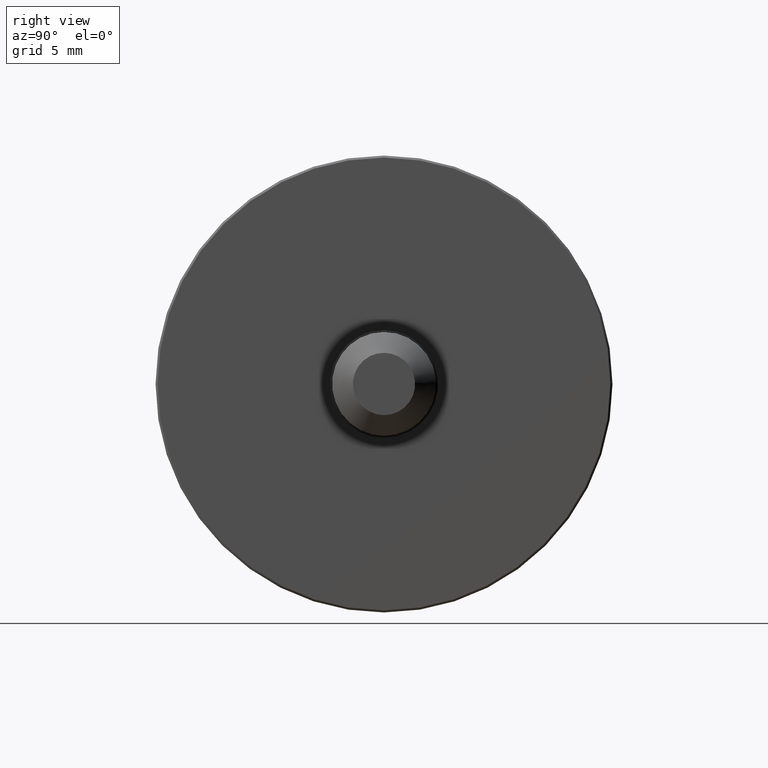
[diagram: clean part render]
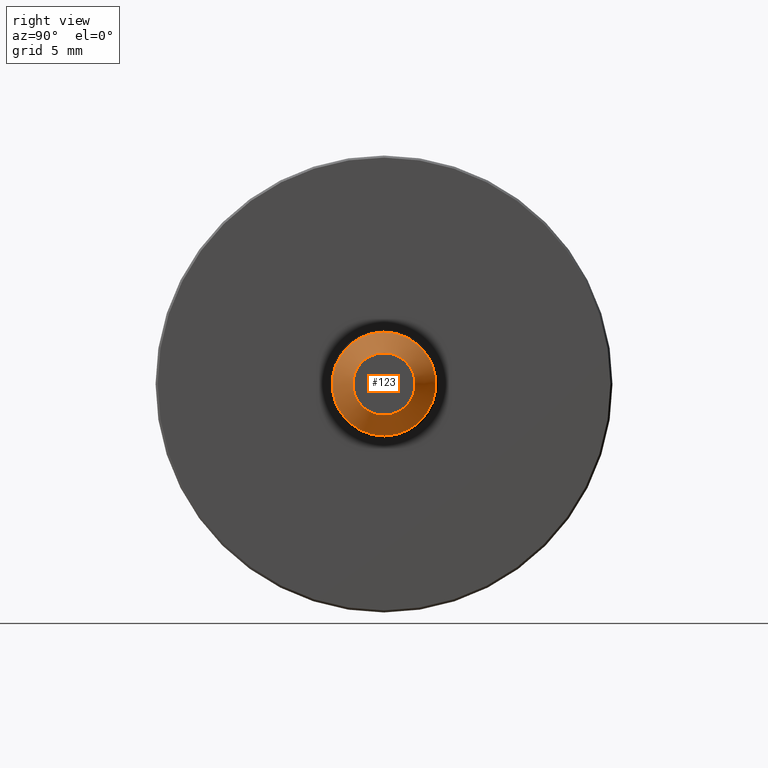
[diagram: same view with one face highlighted and labeled with its STEP entity id]
A machine part, right view. The second image highlights one B-rep face of the part: STEP entity #123.
In plain terms, the highlighted conical surface has half-angle 45 deg.
Its self-contained STEP definition (entity closure, byte-faithful):
#29=FACE_BOUND('',#57,.T.);
#38=FACE_OUTER_BOUND('',#56,.T.);
#56=EDGE_LOOP('',(#106));
#57=EDGE_LOOP('',(#107));
#69=CIRCLE('',#143,2.5);
#70=CIRCLE('',#145,1.5);
#79=VERTEX_POINT('',#216);
#80=VERTEX_POINT('',#219);
#89=EDGE_CURVE('',#79,#79,#69,.T.);
#90=EDGE_CURVE('',#80,#80,#70,.T.);
#106=ORIENTED_EDGE('',*,*,#89,.T.);
#107=ORIENTED_EDGE('',*,*,#90,.T.);
#115=CONICAL_SURFACE('',#144,2.,45.);
#123=ADVANCED_FACE('',(#38,#29),#115,.T.);
#143=AXIS2_PLACEMENT_3D('',#217,#180,#181);
#144=AXIS2_PLACEMENT_3D('',#218,#182,#183);
#145=AXIS2_PLACEMENT_3D('',#220,#184,#185);
#180=DIRECTION('center_axis',(1.,0.,0.));
#181=DIRECTION('ref_axis',(0.,0.,1.));
#182=DIRECTION('center_axis',(-1.,0.,0.));
#183=DIRECTION('ref_axis',(0.,0.,1.));
#184=DIRECTION('center_axis',(-1.,0.,0.));
#185=DIRECTION('ref_axis',(0.,0.,1.));
#216=CARTESIAN_POINT('',(15.5,3.06161699786838E-16,-2.5));
#217=CARTESIAN_POINT('Origin',(15.5,0.,0.));
#218=CARTESIAN_POINT('Origin',(16.,0.,0.));
#219=CARTESIAN_POINT('',(16.5,-1.83697019872103E-16,-1.5));
#220=CARTESIAN_POINT('Origin',(16.5,0.,0.));